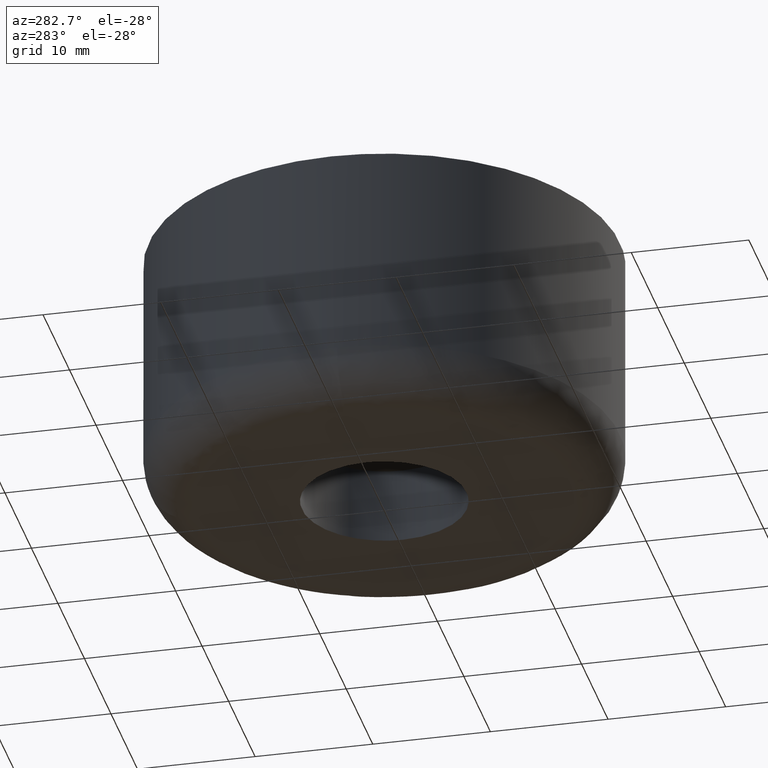
[diagram: clean part render]
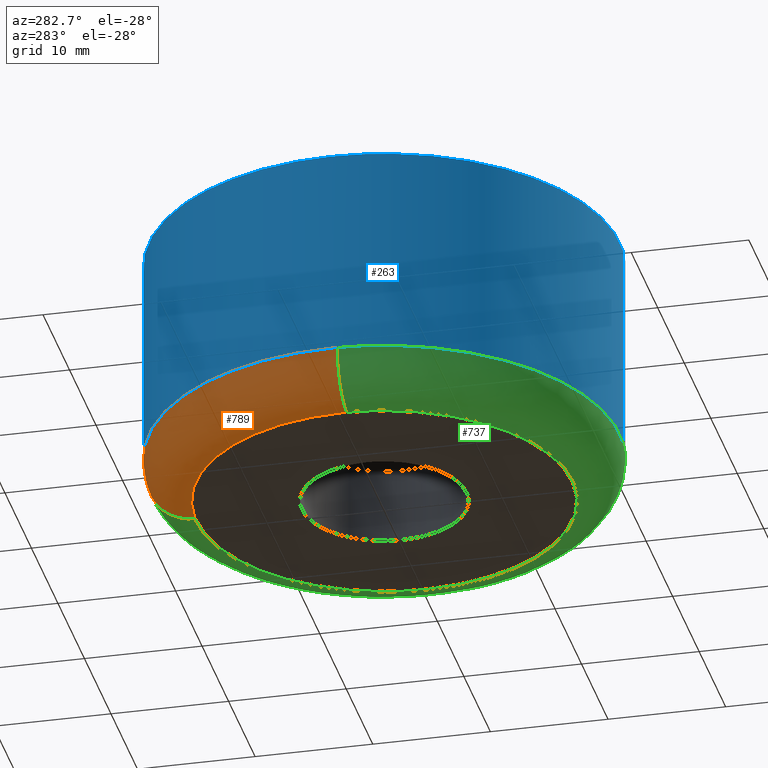
[diagram: same view with three faces highlighted in distinct colors, each labeled with its STEP entity id]
A machine part, auxiliary view with three faces highlighted in distinct colors.
Their STEP definitions:

[orange] entity #789 — the highlighted face is a freeform B-spline surface patch.
#150=CARTESIAN_POINT('',(-0.502601908870846,19.993683785665890,3.999999999924962));
#151=VERTEX_POINT('',#150);
#167=CARTESIAN_POINT('',(-20.0,0.0,4.000000000000100));
#168=VERTEX_POINT('',#167);
#169=CARTESIAN_POINT('',(-20.0,0.0,4.000000000000100));
#170=CARTESIAN_POINT('',(-19.999999999999996,19.503557523605004,4.000000000000100));
#171=CARTESIAN_POINT('',(-0.502601908870846,19.993683785665901,3.999999999924962));
#179=(BOUNDED_CURVE()B_SPLINE_CURVE(2,(#169,#170,#171),.UNSPECIFIED.,.F.,.U.)B_SPLINE_CURVE_WITH_KNOTS((3,3),(0.0,0.245579891769736),.UNSPECIFIED.)CURVE()GEOMETRIC_REPRESENTATION_ITEM()RATIONAL_B_SPLINE_CURVE((1.0,0.712285260094811,0.989826157681414))REPRESENTATION_ITEM(''));
#180=EDGE_CURVE('',#168,#151,#179,.T.);
#182=CARTESIAN_POINT('',(-19.993683785665880,-0.502601908871384,3.999999999924933));
#183=VERTEX_POINT('',#182);
#184=CARTESIAN_POINT('',(-19.993683785665880,-0.502601908871384,3.999999999924933));
#185=CARTESIAN_POINT('',(-20.000000000000004,-0.251340642472230,4.000000000000100));
#186=CARTESIAN_POINT('',(-20.0,0.0,4.000000000000100));
#194=(BOUNDED_CURVE()B_SPLINE_CURVE(2,(#184,#185,#186),.UNSPECIFIED.,.F.,.U.)B_SPLINE_CURVE_WITH_KNOTS((3,3),(0.995579891769726,1.0),.UNSPECIFIED.)CURVE()GEOMETRIC_REPRESENTATION_ITEM()RATIONAL_B_SPLINE_CURVE((0.989826157681393,0.994821521091725,1.0))REPRESENTATION_ITEM(''));
#195=EDGE_CURVE('',#183,#168,#194,.T.);
#669=CARTESIAN_POINT('',(-0.402081527164694,15.994947028919579,1.002191E-013));
#670=VERTEX_POINT('',#669);
#688=CARTESIAN_POINT('',(-0.502601908870846,19.993683785665890,3.999999999924962));
#689=CARTESIAN_POINT('',(-0.502601908862973,19.993683785515767,7.770039E-010));
#690=CARTESIAN_POINT('',(-0.402081527164694,15.994947028919585,1.002191E-013));
#698=(BOUNDED_CURVE()B_SPLINE_CURVE(2,(#688,#689,#690),.UNSPECIFIED.,.F.,.U.)B_SPLINE_CURVE_WITH_KNOTS((3,3),(-1.723441281946088,-0.263586879128847),.UNSPECIFIED.)CURVE()GEOMETRIC_REPRESENTATION_ITEM()RATIONAL_B_SPLINE_CURVE((0.883897567125032,0.626638727279902,0.888510408990432))REPRESENTATION_ITEM(''));
#699=EDGE_CURVE('',#151,#670,#698,.T.);
#705=CARTESIAN_POINT('',(-15.994947028916400,-0.402081527164047,1.002191E-013));
#706=VERTEX_POINT('',#705);
#707=CARTESIAN_POINT('',(-19.993683785665880,-0.502601908871384,3.999999999924933));
#708=CARTESIAN_POINT('',(-19.993683785515703,-0.502601908862970,7.706244E-010));
#709=CARTESIAN_POINT('',(-15.994947028916403,-0.402081527164047,1.002191E-013));
#717=(BOUNDED_CURVE()B_SPLINE_CURVE(2,(#707,#708,#709),.UNSPECIFIED.,.F.,.U.)B_SPLINE_CURVE_WITH_KNOTS((3,3),(-1.723441281946073,-0.263586879127196),.UNSPECIFIED.)CURVE()GEOMETRIC_REPRESENTATION_ITEM()RATIONAL_B_SPLINE_CURVE((0.883897567125026,0.626638727279614,0.888510408991025))REPRESENTATION_ITEM(''));
#718=EDGE_CURVE('',#183,#706,#717,.T.);
#738=CARTESIAN_POINT('',(-19.983952088907849,-0.502357273139806,4.278896760571219));
#739=CARTESIAN_POINT('',(-20.486309362047653,19.481594815768037,4.278896760571217));
#740=CARTESIAN_POINT('',(-0.502357273139807,19.983952088907849,4.278896760571219));
#741=CARTESIAN_POINT('',(-20.304542596688961,-0.510416288321934,-0.309343271283034));
#742=CARTESIAN_POINT('',(-20.814958885010899,19.794126308367023,-0.309343271283034));
#743=CARTESIAN_POINT('',(-0.510416288321935,20.304542596688961,-0.309343271283034));
#744=CARTESIAN_POINT('',(-15.717631870895390,-0.395110369147699,0.009630630342520));
#745=CARTESIAN_POINT('',(-16.112742240043097,15.322521501747687,0.009630630342520));
#746=CARTESIAN_POINT('',(-0.395110369147700,15.717631870895390,0.009630630342520));
#754=(BOUNDED_SURFACE()B_SPLINE_SURFACE(2,2,((#738,#741,#744),(#739,#742,#745),(#740,#743,#746)),.UNSPECIFIED.,.F.,.F.,.U.)B_SPLINE_SURFACE_WITH_KNOTS((3,3),(3,3),(0.0,33.120955892977442),(0.0,7.289481894203476),.UNSPECIFIED.)GEOMETRIC_REPRESENTATION_ITEM()RATIONAL_B_SPLINE_SURFACE(((0.910892943696970,0.599412908651799,0.915966670675324),(0.644098577423104,0.423848932438440,0.647686244175387),(0.910892943696970,0.599412908651799,0.915966670675324)))REPRESENTATION_ITEM('')SURFACE());
#755=CARTESIAN_POINT('',(-16.0,0.0,9.947598E-014));
#756=VERTEX_POINT('',#755);
#757=CARTESIAN_POINT('',(-16.0,0.0,9.947598E-014));
#758=CARTESIAN_POINT('',(-16.0,15.602846018770315,9.947598E-014));
#759=CARTESIAN_POINT('',(-0.402081527164694,15.994947028919578,1.002191E-013));
#767=(BOUNDED_CURVE()B_SPLINE_CURVE(2,(#757,#758,#759),.UNSPECIFIED.,.F.,.U.)B_SPLINE_CURVE_WITH_KNOTS((3,3),(0.0,0.245579891768461),.UNSPECIFIED.)CURVE()GEOMETRIC_REPRESENTATION_ITEM()RATIONAL_B_SPLINE_CURVE((1.0,0.712285260096304,0.989826157678533))REPRESENTATION_ITEM(''));
#768=EDGE_CURVE('',#756,#670,#767,.T.);
#769=ORIENTED_EDGE('',*,*,#768,.F.);
#770=CARTESIAN_POINT('',(-15.994947028916403,-0.402081527164047,1.002191E-013));
#771=CARTESIAN_POINT('',(-15.999999999999998,-0.201072514035070,9.947598E-014));
#772=CARTESIAN_POINT('',(-16.0,0.0,9.947598E-014));
#780=(BOUNDED_CURVE()B_SPLINE_CURVE(2,(#770,#771,#772),.UNSPECIFIED.,.F.,.U.)B_SPLINE_CURVE_WITH_KNOTS((3,3),(0.995579891768474,1.0),.UNSPECIFIED.)CURVE()GEOMETRIC_REPRESENTATION_ITEM()RATIONAL_B_SPLINE_CURVE((0.989826157678561,0.994821521090258,1.0))REPRESENTATION_ITEM(''));
#781=EDGE_CURVE('',#706,#756,#780,.T.);
#782=ORIENTED_EDGE('',*,*,#781,.F.);
#783=ORIENTED_EDGE('',*,*,#718,.F.);
#784=ORIENTED_EDGE('',*,*,#195,.T.);
#785=ORIENTED_EDGE('',*,*,#180,.T.);
#786=ORIENTED_EDGE('',*,*,#699,.T.);
#787=EDGE_LOOP('',(#769,#782,#783,#784,#785,#786));
#788=FACE_OUTER_BOUND('',#787,.T.);
#789=ADVANCED_FACE('',(#788),#754,.T.);

[blue] entity #263 — the highlighted face is a freeform B-spline surface patch.
#62=CARTESIAN_POINT('',(19.519379982625448,-4.358188281122331,4.000000000000071));
#63=VERTEX_POINT('',#62);
#64=CARTESIAN_POINT('',(1.569170392331412,-19.938347581474670,4.000000000000124));
#65=VERTEX_POINT('',#64);
#79=CARTESIAN_POINT('',(19.519379947706881,-4.358188437515530,22.0));
#80=VERTEX_POINT('',#79);
#81=CARTESIAN_POINT('',(19.519379947706881,-4.358188437515530,22.0));
#82=CARTESIAN_POINT('',(19.519379982625448,-4.358188281122331,4.000000000000071));
#83=QUASI_UNIFORM_CURVE('',1,(#81,#82),.UNSPECIFIED.,.F.,.U.);
#84=EDGE_CURVE('',#80,#63,#83,.T.);
#86=CARTESIAN_POINT('',(1.569170534429815,-19.938347570291452,22.0));
#87=VERTEX_POINT('',#86);
#101=CARTESIAN_POINT('',(1.569170534429815,-19.938347570291452,22.0));
#102=CARTESIAN_POINT('',(1.569170392331412,-19.938347581474670,4.000000000000124));
#103=QUASI_UNIFORM_CURVE('',1,(#101,#102),.UNSPECIFIED.,.F.,.U.);
#104=EDGE_CURVE('',#87,#65,#103,.T.);
#109=CARTESIAN_POINT('',(1.569181914556897,-19.938346674662551,22.450000000001879));
#110=CARTESIAN_POINT('',(-18.369164760105654,-21.507528589219444,22.450000000001875));
#111=CARTESIAN_POINT('',(-19.938346674662551,-1.569181914556897,22.450000000001879));
#112=CARTESIAN_POINT('',(-21.507528589219444,18.369164760105654,22.450000000001875));
#113=CARTESIAN_POINT('',(-1.569181914556897,19.938346674662551,22.450000000001879));
#114=CARTESIAN_POINT('',(18.369164760105654,21.507528589219444,22.450000000001875));
#115=CARTESIAN_POINT('',(19.938346674662551,1.569181914556897,22.450000000001879));
#116=CARTESIAN_POINT('',(20.174070915534511,-1.425978551241638,22.450000000001879));
#117=CARTESIAN_POINT('',(19.519377153387083,-4.358200952667287,22.450000000001882));
#118=CARTESIAN_POINT('',(1.569181914556897,-19.938346674662551,3.538749999923006));
#119=CARTESIAN_POINT('',(-18.369164760105654,-21.507528589219444,3.538749999923006));
#120=CARTESIAN_POINT('',(-19.938346674662551,-1.569181914556897,3.538749999923006));
#121=CARTESIAN_POINT('',(-21.507528589219444,18.369164760105654,3.538749999923006));
#122=CARTESIAN_POINT('',(-1.569181914556897,19.938346674662551,3.538749999923006));
#123=CARTESIAN_POINT('',(18.369164760105654,21.507528589219444,3.538749999923006));
#124=CARTESIAN_POINT('',(19.938346674662551,1.569181914556897,3.538749999923006));
#125=CARTESIAN_POINT('',(20.174070915534511,-1.425978551241638,3.538749999923005));
#126=CARTESIAN_POINT('',(19.519377153387083,-4.358200952667287,3.538749999923005));
#134=(BOUNDED_SURFACE()B_SPLINE_SURFACE(2,1,((#109,#118),(#110,#119),(#111,#120),(#112,#121),(#113,#122),(#114,#123),(#115,#124),(#116,#125),(#117,#126)),.UNSPECIFIED.,.F.,.F.,.U.)B_SPLINE_SURFACE_WITH_KNOTS((3,2,2,2,3),(2,2),(0.0,33.137084989847587,66.274169979695188,99.411254969542782,106.038671967512300),(0.0,18.911250000078880),.UNSPECIFIED.)GEOMETRIC_REPRESENTATION_ITEM()RATIONAL_B_SPLINE_SURFACE(((1.0,1.0),(0.707106781186548,0.707106781186548),(1.0,1.0),(0.707106781186548,0.707106781186548),(1.0,1.0),(0.707106781186548,0.707106781186548),(1.0,1.0),(0.941421356237310,0.941421356237310),(0.906274169979695,0.906274169979695)))REPRESENTATION_ITEM('')SURFACE());
#135=CARTESIAN_POINT('',(20.0,0.0,4.000000000000100));
#136=VERTEX_POINT('',#135);
#137=CARTESIAN_POINT('',(20.0,0.0,4.000000000000100));
#138=CARTESIAN_POINT('',(20.000000000000004,-2.205595473936513,4.000000000000100));
#139=CARTESIAN_POINT('',(19.519379982625452,-4.358188281122331,4.000000000000071));
#147=(BOUNDED_CURVE()B_SPLINE_CURVE(2,(#137,#138,#139),.UNSPECIFIED.,.F.,.U.)B_SPLINE_CURVE_WITH_KNOTS((3,3),(0.500000000000000,0.537286560993393),.UNSPECIFIED.)CURVE()GEOMETRIC_REPRESENTATION_ITEM()RATIONAL_B_SPLINE_CURVE((1.0,0.956316076528644,0.925662739272852))REPRESENTATION_ITEM(''));
#148=EDGE_CURVE('',#136,#63,#147,.T.);
#149=ORIENTED_EDGE('',*,*,#148,.F.);
#150=CARTESIAN_POINT('',(-0.502601908870846,19.993683785665890,3.999999999924962));
#151=VERTEX_POINT('',#150);
#152=CARTESIAN_POINT('',(-0.502601908870846,19.993683785665894,3.999999999924961));
#153=CARTESIAN_POINT('',(-0.251340642471690,20.000000000000004,4.000000000000100));
#154=CARTESIAN_POINT('',(0.0,20.0,4.000000000000100));
#155=CARTESIAN_POINT('',(19.999999999999996,19.999999999999996,4.000000000000100));
#156=CARTESIAN_POINT('',(20.0,0.0,4.000000000000100));
#164=(BOUNDED_CURVE()B_SPLINE_CURVE(2,(#152,#153,#154,#155,#156),.UNSPECIFIED.,.F.,.U.)B_SPLINE_CURVE_WITH_KNOTS((3,2,3),(0.245579891769736,0.250000000000000,0.500000000000000),.UNSPECIFIED.)CURVE()GEOMETRIC_REPRESENTATION_ITEM()RATIONAL_B_SPLINE_CURVE((0.989826157681414,0.994821521091736,1.0,0.707106781186548,1.0))REPRESENTATION_ITEM(''));
#165=EDGE_CURVE('',#151,#136,#164,.T.);
#166=ORIENTED_EDGE('',*,*,#165,.F.);
#167=CARTESIAN_POINT('',(-20.0,0.0,4.000000000000100));
#168=VERTEX_POINT('',#167);
#169=CARTESIAN_POINT('',(-20.0,0.0,4.000000000000100));
#170=CARTESIAN_POINT('',(-19.999999999999996,19.503557523605004,4.000000000000100));
#171=CARTESIAN_POINT('',(-0.502601908870846,19.993683785665901,3.999999999924962));
#179=(BOUNDED_CURVE()B_SPLINE_CURVE(2,(#169,#170,#171),.UNSPECIFIED.,.F.,.U.)B_SPLINE_CURVE_WITH_KNOTS((3,3),(0.0,0.245579891769736),.UNSPECIFIED.)CURVE()GEOMETRIC_REPRESENTATION_ITEM()RATIONAL_B_SPLINE_CURVE((1.0,0.712285260094811,0.989826157681414))REPRESENTATION_ITEM(''));
#180=EDGE_CURVE('',#168,#151,#179,.T.);
#181=ORIENTED_EDGE('',*,*,#180,.F.);
#182=CARTESIAN_POINT('',(-19.993683785665880,-0.502601908871384,3.999999999924933));
#183=VERTEX_POINT('',#182);
#184=CARTESIAN_POINT('',(-19.993683785665880,-0.502601908871384,3.999999999924933));
#185=CARTESIAN_POINT('',(-20.000000000000004,-0.251340642472230,4.000000000000100));
#186=CARTESIAN_POINT('',(-20.0,0.0,4.000000000000100));
#194=(BOUNDED_CURVE()B_SPLINE_CURVE(2,(#184,#185,#186),.UNSPECIFIED.,.F.,.U.)B_SPLINE_CURVE_WITH_KNOTS((3,3),(0.995579891769726,1.0),.UNSPECIFIED.)CURVE()GEOMETRIC_REPRESENTATION_ITEM()RATIONAL_B_SPLINE_CURVE((0.989826157681393,0.994821521091725,1.0))REPRESENTATION_ITEM(''));
#195=EDGE_CURVE('',#183,#168,#194,.T.);
#196=ORIENTED_EDGE('',*,*,#195,.F.);
#197=CARTESIAN_POINT('',(1.569170392331412,-19.938347581474670,4.000000000000124));
#198=CARTESIAN_POINT('',(0.785796352305469,-19.999999999999996,4.000000000000099));
#199=CARTESIAN_POINT('',(0.0,-20.0,4.000000000000100));
#200=CARTESIAN_POINT('',(-19.503557523603920,-20.000000000000004,4.000000000000100));
#201=CARTESIAN_POINT('',(-19.993683785665883,-0.502601908871384,3.999999999924933));
#209=(BOUNDED_CURVE()B_SPLINE_CURVE(2,(#197,#198,#199,#200,#201),.UNSPECIFIED.,.F.,.U.)B_SPLINE_CURVE_WITH_KNOTS((3,2,3),(0.736331399697739,0.750000000000000,0.995579891769726),.UNSPECIFIED.)CURVE()GEOMETRIC_REPRESENTATION_ITEM()RATIONAL_B_SPLINE_CURVE((0.969723562912946,0.983986238643185,1.0,0.712285260094822,0.989826157681392))REPRESENTATION_ITEM(''));
#210=EDGE_CURVE('',#65,#183,#209,.T.);
#211=ORIENTED_EDGE('',*,*,#210,.F.);
#212=ORIENTED_EDGE('',*,*,#104,.F.);
#213=CARTESIAN_POINT('',(-20.0,0.0,22.0));
#214=VERTEX_POINT('',#213);
#215=CARTESIAN_POINT('',(1.569170534429815,-19.938347570291448,22.000000000000004));
#216=CARTESIAN_POINT('',(0.785796423684385,-20.000000000000004,22.000000000000004));
#217=CARTESIAN_POINT('',(0.0,-20.0,22.0));
#218=CARTESIAN_POINT('',(-19.999999999999996,-19.999999999999996,22.000000000000007));
#219=CARTESIAN_POINT('',(-20.0,0.0,22.0));
#227=(BOUNDED_CURVE()B_SPLINE_CURVE(2,(#215,#216,#217,#218,#219),.UNSPECIFIED.,.F.,.U.)B_SPLINE_CURVE_WITH_KNOTS((3,2,3),(0.736331398476015,0.750000000000000,1.0),.UNSPECIFIED.)CURVE()GEOMETRIC_REPRESENTATION_ITEM()RATIONAL_B_SPLINE_CURVE((0.969723560363300,0.983986237211846,1.0,0.707106781186548,1.0))REPRESENTATION_ITEM(''));
#228=EDGE_CURVE('',#87,#214,#227,.T.);
#229=ORIENTED_EDGE('',*,*,#228,.T.);
#230=CARTESIAN_POINT('',(20.0,0.0,22.0));
#231=VERTEX_POINT('',#230);
#232=CARTESIAN_POINT('',(-20.0,0.0,22.0));
#233=CARTESIAN_POINT('',(-19.999999999999996,19.999999999999996,22.000000000000007));
#234=CARTESIAN_POINT('',(0.0,20.0,22.0));
#235=CARTESIAN_POINT('',(19.999999999999996,19.999999999999996,22.000000000000007));
#236=CARTESIAN_POINT('',(20.0,0.0,22.0));
#244=(BOUNDED_CURVE()B_SPLINE_CURVE(2,(#232,#233,#234,#235,#236),.UNSPECIFIED.,.F.,.U.)B_SPLINE_CURVE_WITH_KNOTS((3,2,3),(0.0,0.250000000000000,0.500000000000000),.UNSPECIFIED.)CURVE()GEOMETRIC_REPRESENTATION_ITEM()RATIONAL_B_SPLINE_CURVE((1.0,0.707106781186548,1.0,0.707106781186548,1.0))REPRESENTATION_ITEM(''));
#245=EDGE_CURVE('',#214,#231,#244,.T.);
#246=ORIENTED_EDGE('',*,*,#245,.T.);
#247=CARTESIAN_POINT('',(20.0,0.0,22.0));
#248=CARTESIAN_POINT('',(20.000000000000004,-2.205595555032925,22.0));
#249=CARTESIAN_POINT('',(19.519379947706877,-4.358188437515530,21.999999999999996));
#257=(BOUNDED_CURVE()B_SPLINE_CURVE(2,(#247,#248,#249),.UNSPECIFIED.,.F.,.U.)B_SPLINE_CURVE_WITH_KNOTS((3,3),(0.500000000000000,0.537286562304474),.UNSPECIFIED.)CURVE()GEOMETRIC_REPRESENTATION_ITEM()RATIONAL_B_SPLINE_CURVE((1.0,0.956316074992617,0.925662737117168))REPRESENTATION_ITEM(''));
#258=EDGE_CURVE('',#231,#80,#257,.T.);
#259=ORIENTED_EDGE('',*,*,#258,.T.);
#260=ORIENTED_EDGE('',*,*,#84,.T.);
#261=EDGE_LOOP('',(#149,#166,#181,#196,#211,#212,#229,#246,#259,#260));
#262=FACE_OUTER_BOUND('',#261,.T.);
#263=ADVANCED_FACE('',(#262),#134,.T.);

[green] entity #737 — the highlighted face is a freeform B-spline surface patch.
#62=CARTESIAN_POINT('',(19.519379982625448,-4.358188281122331,4.000000000000071));
#63=VERTEX_POINT('',#62);
#64=CARTESIAN_POINT('',(1.569170392331412,-19.938347581474670,4.000000000000124));
#65=VERTEX_POINT('',#64);
#66=CARTESIAN_POINT('',(19.519379982625452,-4.358188281122331,4.000000000000071));
#67=CARTESIAN_POINT('',(16.299563234985335,-18.779049087876711,4.000000000000100));
#68=CARTESIAN_POINT('',(1.569170392331412,-19.938347581474670,4.000000000000124));
#76=(BOUNDED_CURVE()B_SPLINE_CURVE(2,(#66,#67,#68),.UNSPECIFIED.,.F.,.U.)B_SPLINE_CURVE_WITH_KNOTS((3,3),(0.537286560993393,0.736331399697739),.UNSPECIFIED.)CURVE()GEOMETRIC_REPRESENTATION_ITEM()RATIONAL_B_SPLINE_CURVE((0.925662739272852,0.762027681298202,0.969723562912946))REPRESENTATION_ITEM(''));
#77=EDGE_CURVE('',#63,#65,#76,.T.);
#135=CARTESIAN_POINT('',(20.0,0.0,4.000000000000100));
#136=VERTEX_POINT('',#135);
#137=CARTESIAN_POINT('',(20.0,0.0,4.000000000000100));
#138=CARTESIAN_POINT('',(20.000000000000004,-2.205595473936513,4.000000000000100));
#139=CARTESIAN_POINT('',(19.519379982625452,-4.358188281122331,4.000000000000071));
#147=(BOUNDED_CURVE()B_SPLINE_CURVE(2,(#137,#138,#139),.UNSPECIFIED.,.F.,.U.)B_SPLINE_CURVE_WITH_KNOTS((3,3),(0.500000000000000,0.537286560993393),.UNSPECIFIED.)CURVE()GEOMETRIC_REPRESENTATION_ITEM()RATIONAL_B_SPLINE_CURVE((1.0,0.956316076528644,0.925662739272852))REPRESENTATION_ITEM(''));
#148=EDGE_CURVE('',#136,#63,#147,.T.);
#150=CARTESIAN_POINT('',(-0.502601908870846,19.993683785665890,3.999999999924962));
#151=VERTEX_POINT('',#150);
#152=CARTESIAN_POINT('',(-0.502601908870846,19.993683785665894,3.999999999924961));
#153=CARTESIAN_POINT('',(-0.251340642471690,20.000000000000004,4.000000000000100));
#154=CARTESIAN_POINT('',(0.0,20.0,4.000000000000100));
#155=CARTESIAN_POINT('',(19.999999999999996,19.999999999999996,4.000000000000100));
#156=CARTESIAN_POINT('',(20.0,0.0,4.000000000000100));
#164=(BOUNDED_CURVE()B_SPLINE_CURVE(2,(#152,#153,#154,#155,#156),.UNSPECIFIED.,.F.,.U.)B_SPLINE_CURVE_WITH_KNOTS((3,2,3),(0.245579891769736,0.250000000000000,0.500000000000000),.UNSPECIFIED.)CURVE()GEOMETRIC_REPRESENTATION_ITEM()RATIONAL_B_SPLINE_CURVE((0.989826157681414,0.994821521091736,1.0,0.707106781186548,1.0))REPRESENTATION_ITEM(''));
#165=EDGE_CURVE('',#151,#136,#164,.T.);
#182=CARTESIAN_POINT('',(-19.993683785665880,-0.502601908871384,3.999999999924933));
#183=VERTEX_POINT('',#182);
#197=CARTESIAN_POINT('',(1.569170392331412,-19.938347581474670,4.000000000000124));
#198=CARTESIAN_POINT('',(0.785796352305469,-19.999999999999996,4.000000000000099));
#199=CARTESIAN_POINT('',(0.0,-20.0,4.000000000000100));
#200=CARTESIAN_POINT('',(-19.503557523603920,-20.000000000000004,4.000000000000100));
#201=CARTESIAN_POINT('',(-19.993683785665883,-0.502601908871384,3.999999999924933));
#209=(BOUNDED_CURVE()B_SPLINE_CURVE(2,(#197,#198,#199,#200,#201),.UNSPECIFIED.,.F.,.U.)B_SPLINE_CURVE_WITH_KNOTS((3,2,3),(0.736331399697739,0.750000000000000,0.995579891769726),.UNSPECIFIED.)CURVE()GEOMETRIC_REPRESENTATION_ITEM()RATIONAL_B_SPLINE_CURVE((0.969723562912946,0.983986238643185,1.0,0.712285260094822,0.989826157681392))REPRESENTATION_ITEM(''));
#210=EDGE_CURVE('',#65,#183,#209,.T.);
#640=CARTESIAN_POINT('',(-0.502357273179140,19.983952090472510,4.278896738177937));
#641=CARTESIAN_POINT('',(19.481594817293374,20.486309363651653,4.278896738177937));
#642=CARTESIAN_POINT('',(19.983952090472510,0.502357273179141,4.278896738177937));
#643=CARTESIAN_POINT('',(20.486309363651667,-19.481594817293374,4.278896738177937));
#644=CARTESIAN_POINT('',(0.502357273179147,-19.983952090472510,4.278896738177937));
#645=CARTESIAN_POINT('',(-19.481594817293374,-20.486309363651667,4.278896738177937));
#646=CARTESIAN_POINT('',(-19.983952090472510,-0.502357273179148,4.278896738177937));
#647=CARTESIAN_POINT('',(-0.510416286713883,20.304542532720070,-0.309342725970779));
#648=CARTESIAN_POINT('',(19.794126246006186,20.814958819433954,-0.309342725970779));
#649=CARTESIAN_POINT('',(20.304542532720070,0.510416286713884,-0.309342725970779));
#650=CARTESIAN_POINT('',(20.814958819433958,-19.794126246006179,-0.309342725970779));
#651=CARTESIAN_POINT('',(0.510416286713890,-20.304542532720070,-0.309342725970779));
#652=CARTESIAN_POINT('',(-19.794126246006176,-20.814958819433958,-0.309342725970779));
#653=CARTESIAN_POINT('',(-20.304542532720070,-0.510416286713891,-0.309342725970779));
#654=CARTESIAN_POINT('',(-0.395110380911401,15.717632338859628,0.009630597800301));
#655=CARTESIAN_POINT('',(15.322521957948227,16.112742719771028,0.009630597800302));
#656=CARTESIAN_POINT('',(15.717632338859628,0.395110380911402,0.009630597800301));
#657=CARTESIAN_POINT('',(16.112742719771028,-15.322521957948222,0.009630597800302));
#658=CARTESIAN_POINT('',(0.395110380911407,-15.717632338859628,0.009630597800301));
#659=CARTESIAN_POINT('',(-15.322521957948219,-16.112742719771045,0.009630597800302));
#660=CARTESIAN_POINT('',(-15.717632338859628,-0.395110380911408,0.009630597800301));
#668=(BOUNDED_SURFACE()B_SPLINE_SURFACE(2,2,((#640,#647,#654),(#641,#648,#655),(#642,#649,#656),(#643,#650,#657),(#644,#651,#658),(#645,#652,#659),(#646,#653,#660)),.UNSPECIFIED.,.F.,.F.,.U.)B_SPLINE_SURFACE_WITH_KNOTS((3,2,2,3),(3,3),(0.0,33.120955895570681,66.241911791141362,99.362867686712036),(0.0,7.289481300771511),.UNSPECIFIED.)GEOMETRIC_REPRESENTATION_ITEM()RATIONAL_B_SPLINE_SURFACE(((0.910892941386805,0.599412934105556,0.915966621324616),(0.644098575789570,0.423848950436964,0.647686209279166),(0.910892941386805,0.599412934105556,0.915966621324616),(0.644098575789570,0.423848950436964,0.647686209279166),(0.910892941386805,0.599412934105556,0.915966621324616),(0.644098575789570,0.423848950436964,0.647686209279166),(0.910892941386805,0.599412934105556,0.915966621324616)))REPRESENTATION_ITEM('')SURFACE());
#669=CARTESIAN_POINT('',(-0.402081527164694,15.994947028919579,1.002191E-013));
#670=VERTEX_POINT('',#669);
#671=CARTESIAN_POINT('',(16.0,0.0,0.0));
#672=VERTEX_POINT('',#671);
#673=CARTESIAN_POINT('',(-0.402081527164694,15.994947028919581,1.002191E-013));
#674=CARTESIAN_POINT('',(-0.201072514035635,16.0,9.947598E-014));
#675=CARTESIAN_POINT('',(0.0,16.0,9.947598E-014));
#676=CARTESIAN_POINT('',(15.999999999999998,15.999999999999998,9.947598E-014));
#677=CARTESIAN_POINT('',(16.0,0.0,0.0));
#685=(BOUNDED_CURVE()B_SPLINE_CURVE(2,(#673,#674,#675,#676,#677),.UNSPECIFIED.,.F.,.U.)B_SPLINE_CURVE_WITH_KNOTS((3,2,3),(0.245579891768461,0.250000000000000,0.500000000000000),.UNSPECIFIED.)CURVE()GEOMETRIC_REPRESENTATION_ITEM()RATIONAL_B_SPLINE_CURVE((0.989826157678533,0.994821521090243,1.0,0.707106781186548,1.0))REPRESENTATION_ITEM(''));
#686=EDGE_CURVE('',#670,#672,#685,.T.);
#687=ORIENTED_EDGE('',*,*,#686,.F.);
#688=CARTESIAN_POINT('',(-0.502601908870846,19.993683785665890,3.999999999924962));
#689=CARTESIAN_POINT('',(-0.502601908862973,19.993683785515767,7.770039E-010));
#690=CARTESIAN_POINT('',(-0.402081527164694,15.994947028919585,1.002191E-013));
#698=(BOUNDED_CURVE()B_SPLINE_CURVE(2,(#688,#689,#690),.UNSPECIFIED.,.F.,.U.)B_SPLINE_CURVE_WITH_KNOTS((3,3),(-1.723441281946088,-0.263586879128847),.UNSPECIFIED.)CURVE()GEOMETRIC_REPRESENTATION_ITEM()RATIONAL_B_SPLINE_CURVE((0.883897567125032,0.626638727279902,0.888510408990432))REPRESENTATION_ITEM(''));
#699=EDGE_CURVE('',#151,#670,#698,.T.);
#700=ORIENTED_EDGE('',*,*,#699,.F.);
#701=ORIENTED_EDGE('',*,*,#165,.T.);
#702=ORIENTED_EDGE('',*,*,#148,.T.);
#703=ORIENTED_EDGE('',*,*,#77,.T.);
#704=ORIENTED_EDGE('',*,*,#210,.T.);
#705=CARTESIAN_POINT('',(-15.994947028916400,-0.402081527164047,1.002191E-013));
#706=VERTEX_POINT('',#705);
#707=CARTESIAN_POINT('',(-19.993683785665880,-0.502601908871384,3.999999999924933));
#708=CARTESIAN_POINT('',(-19.993683785515703,-0.502601908862970,7.706244E-010));
#709=CARTESIAN_POINT('',(-15.994947028916403,-0.402081527164047,1.002191E-013));
#717=(BOUNDED_CURVE()B_SPLINE_CURVE(2,(#707,#708,#709),.UNSPECIFIED.,.F.,.U.)B_SPLINE_CURVE_WITH_KNOTS((3,3),(-1.723441281946073,-0.263586879127196),.UNSPECIFIED.)CURVE()GEOMETRIC_REPRESENTATION_ITEM()RATIONAL_B_SPLINE_CURVE((0.883897567125026,0.626638727279614,0.888510408991025))REPRESENTATION_ITEM(''));
#718=EDGE_CURVE('',#183,#706,#717,.T.);
#719=ORIENTED_EDGE('',*,*,#718,.T.);
#720=CARTESIAN_POINT('',(16.0,0.0,0.0));
#721=CARTESIAN_POINT('',(15.999999999999998,-15.999999999999998,9.947598E-014));
#722=CARTESIAN_POINT('',(0.0,-16.0,9.947598E-014));
#723=CARTESIAN_POINT('',(-15.602846018771439,-15.999999999999995,9.947598E-014));
#724=CARTESIAN_POINT('',(-15.994947028916402,-0.402081527164047,1.002191E-013));
#732=(BOUNDED_CURVE()B_SPLINE_CURVE(2,(#720,#721,#722,#723,#724),.UNSPECIFIED.,.F.,.U.)B_SPLINE_CURVE_WITH_KNOTS((3,2,3),(0.500000000000000,0.750000000000000,0.995579891768474),.UNSPECIFIED.)CURVE()GEOMETRIC_REPRESENTATION_ITEM()RATIONAL_B_SPLINE_CURVE((1.0,0.707106781186548,1.0,0.712285260096290,0.989826157678562))REPRESENTATION_ITEM(''));
#733=EDGE_CURVE('',#672,#706,#732,.T.);
#734=ORIENTED_EDGE('',*,*,#733,.F.);
#735=EDGE_LOOP('',(#687,#700,#701,#702,#703,#704,#719,#734));
#736=FACE_OUTER_BOUND('',#735,.T.);
#737=ADVANCED_FACE('',(#736),#668,.T.);